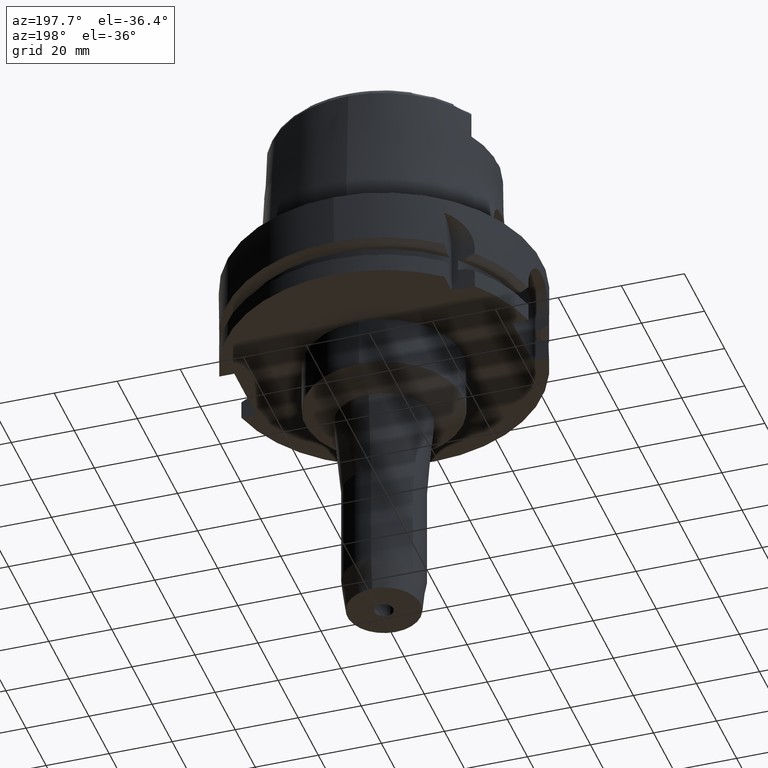
[diagram: clean part render]
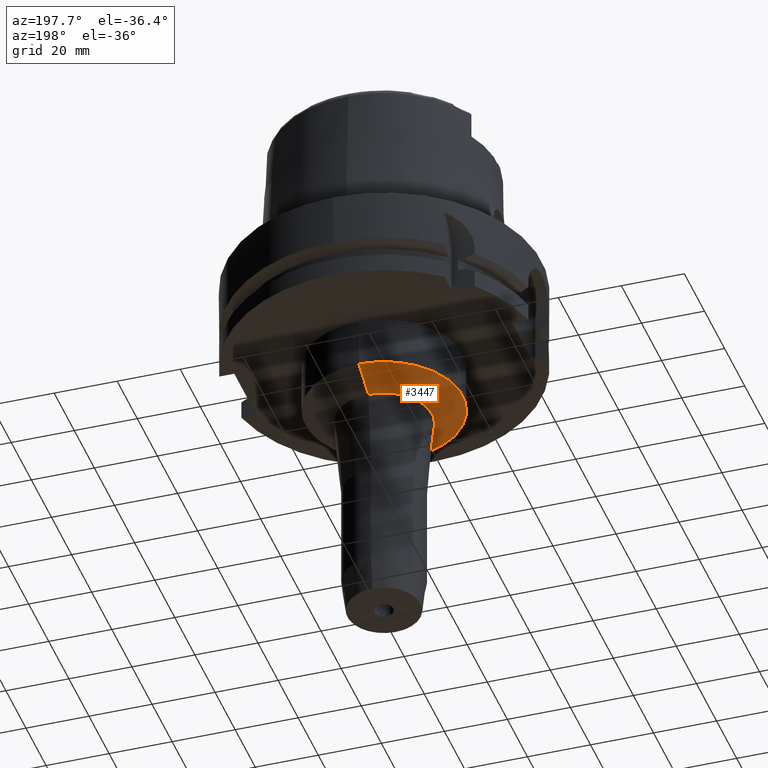
[diagram: same view with one face highlighted and labeled with its STEP entity id]
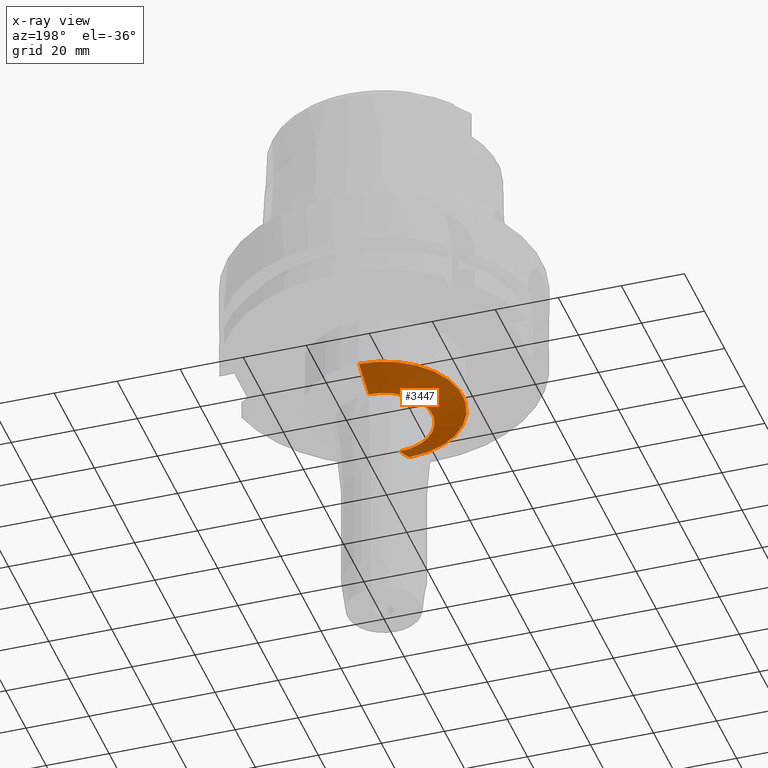
[diagram: x-ray of the same camera — body ghosted, the highlighted face saturated]
A machine part, auxiliary view. The second image highlights one B-rep face of the part: STEP entity #3447.
The next image is the same camera in x-ray: the body ghosted, the highlighted face saturated — about 5% of this face is hidden behind the body in this view.
In plain terms, the highlighted conical surface has half-angle 64.417 deg.
Its self-contained STEP definition (entity closure, byte-faithful):
#1177=CARTESIAN_POINT('',(0.E0,0.E0,-4.5E1));
#1178=DIRECTION('',(0.E0,0.E0,1.E0));
#1179=DIRECTION('',(0.E0,1.E0,0.E0));
#1180=AXIS2_PLACEMENT_3D('',#1177,#1178,#1179);
#1185=DIRECTION('',(0.E0,9.019606891295E-1,-4.318181506896E-1));
#1186=VECTOR('',#1185,1.074764265582E1);
#1187=CARTESIAN_POINT('',(0.E0,-2.5E1,-4.5E1));
#1188=LINE('',#1187,#1186);
#1192=CARTESIAN_POINT('',(0.E0,0.E0,-4.964102717591E1));
#1193=DIRECTION('',(0.E0,0.E0,-1.E0));
#1194=DIRECTION('',(0.E0,-1.E0,0.E0));
#1195=AXIS2_PLACEMENT_3D('',#1192,#1193,#1194);
#1200=DIRECTION('',(0.E0,-9.019606891295E-1,-4.318181506896E-1));
#1201=VECTOR('',#1200,1.074764265582E1);
#1202=CARTESIAN_POINT('',(0.E0,2.5E1,-4.5E1));
#1203=LINE('',#1202,#1201);
#2422=CARTESIAN_POINT('',(0.E0,1.530604882364E1,-4.964102717591E1));
#2423=VERTEX_POINT('',#2422);
#2424=CARTESIAN_POINT('',(0.E0,-1.530604882364E1,-4.964102717591E1));
#2425=VERTEX_POINT('',#2424);
#2426=CARTESIAN_POINT('',(0.E0,2.5E1,-4.5E1));
#2427=VERTEX_POINT('',#2426);
#2428=CARTESIAN_POINT('',(0.E0,-2.5E1,-4.5E1));
#2429=VERTEX_POINT('',#2428);
#3433=CARTESIAN_POINT('',(0.E0,0.E0,-4.732051358796E1));
#3434=DIRECTION('',(0.E0,0.E0,1.E0));
#3435=DIRECTION('',(0.E0,1.E0,0.E0));
#3436=AXIS2_PLACEMENT_3D('',#3433,#3434,#3435);
#3437=CONICAL_SURFACE('',#3436,2.015302441182E1,6.4417E1);
#3439=ORIENTED_EDGE('',*,*,#3438,.F.);
#3441=ORIENTED_EDGE('',*,*,#3440,.T.);
#3443=ORIENTED_EDGE('',*,*,#3442,.T.);
#3444=ORIENTED_EDGE('',*,*,#3426,.T.);
#3445=EDGE_LOOP('',(#3439,#3441,#3443,#3444));
#3446=FACE_OUTER_BOUND('',#3445,.F.);
#1181=CIRCLE('',#1180,2.5E1);
#1196=CIRCLE('',#1195,1.530604882364E1);
#3426=EDGE_CURVE('',#2425,#2423,#1196,.T.);
#3438=EDGE_CURVE('',#2427,#2423,#1203,.T.);
#3440=EDGE_CURVE('',#2427,#2429,#1181,.T.);
#3442=EDGE_CURVE('',#2429,#2425,#1188,.T.);
#3447=ADVANCED_FACE('',(#3446),#3437,.T.);